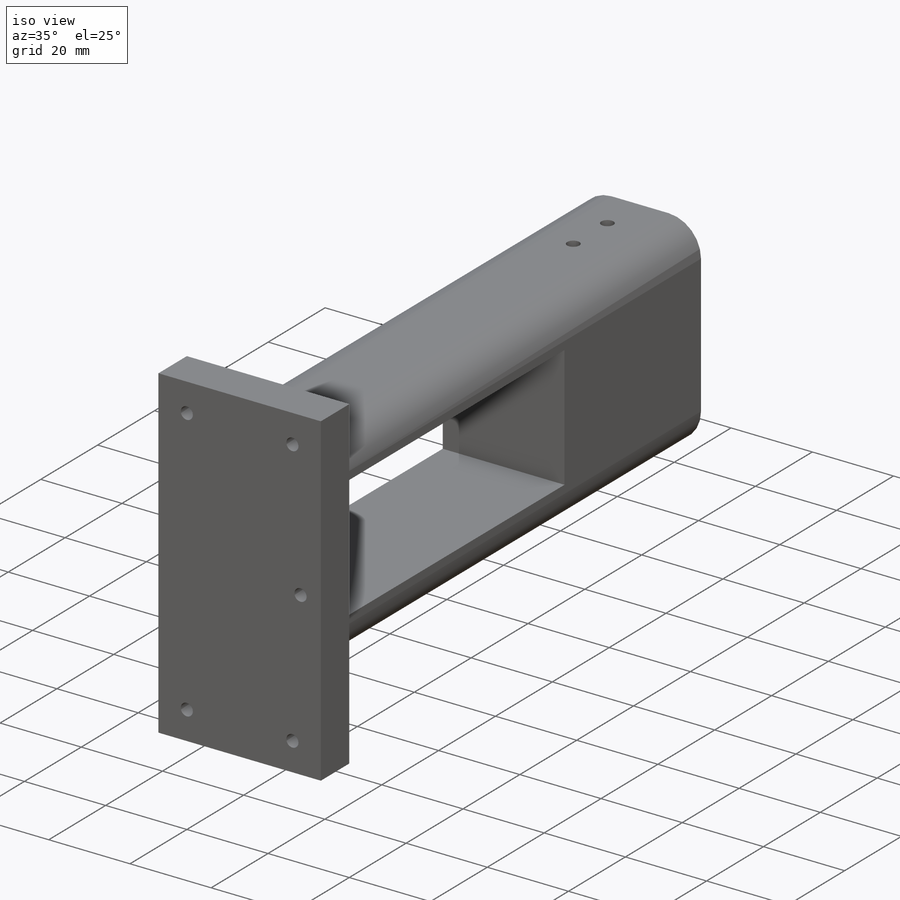
[diagram: iso view]
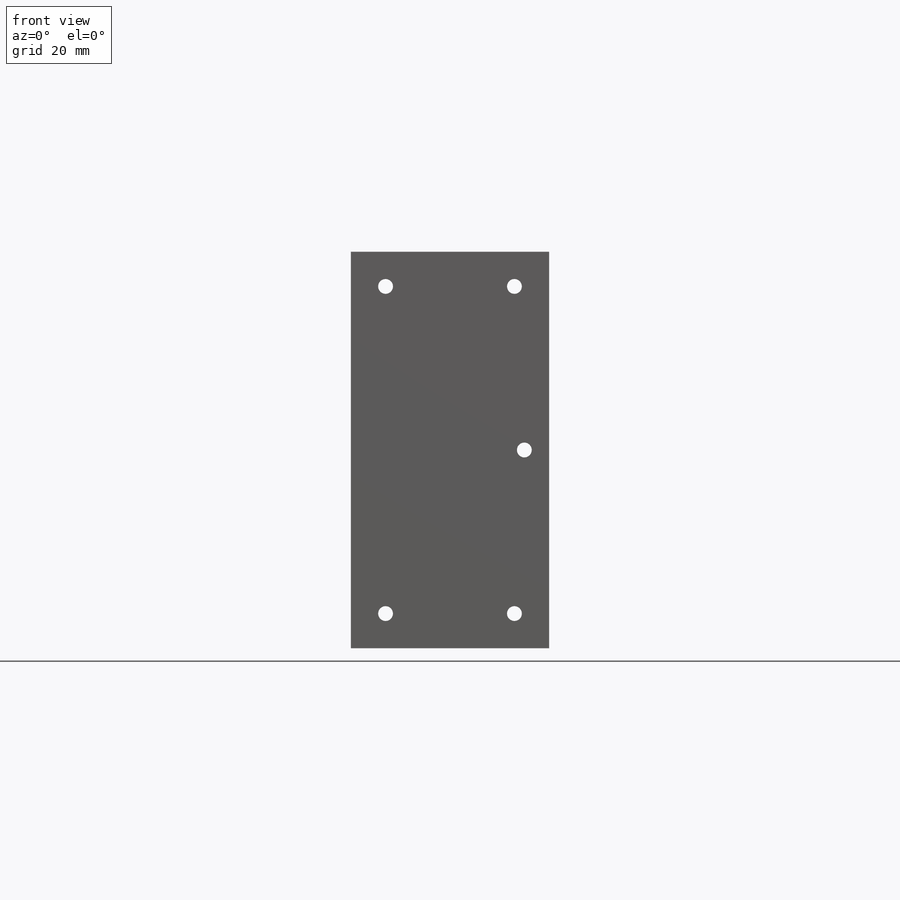
[diagram: front view]
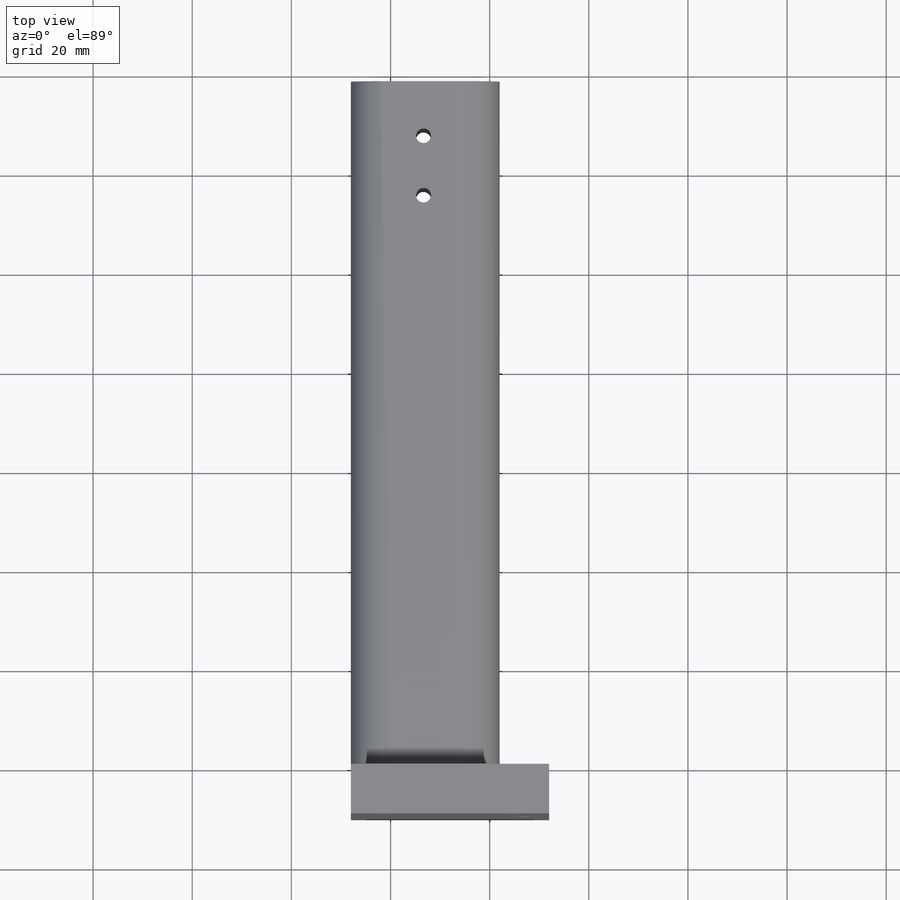
[diagram: top view]
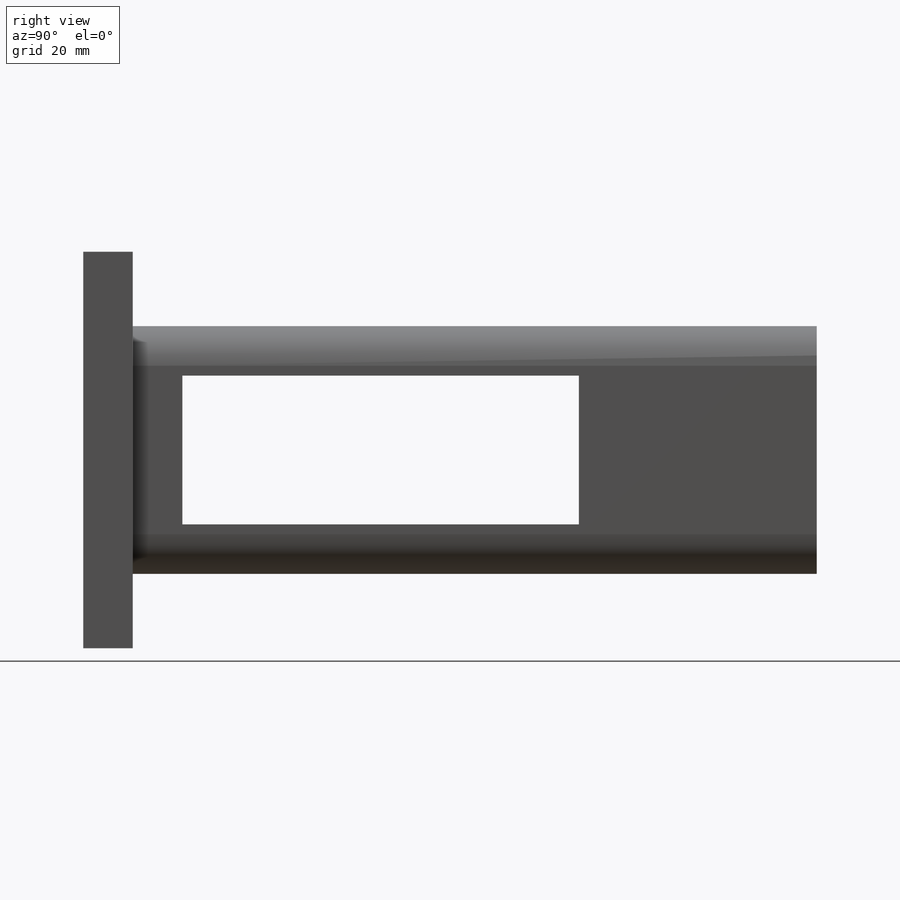
[diagram: right view]
SOLIDWORKS PART (.sldprt)
format: sldprt  version: not decoded by parser v0  size: 303,104 bytes
history: native  units: mm
features: sketch x6, fillet x4, extrude x3, cut_extrude x3, material x1 (+13 scaffold rows collapsed)
feature tree (30):
  scaffold x13  (default folders/planes/origin — collapsed)
  material  "Material <not specified>"
  sketch  "Sketch1"  dims[D1=80.0mm D2=40.0mm]
  extrude  "Boss-Extrude1"  Depth=10mm
  sketch  "Sketch2"  dims[D1=0.0mm D2=50.0mm D3=15.0mm D4=30.0mm]
  extrude  "Boss-Extrude2"  Depth=100mm
  sketch  "Sketch4"  dims[D1=10.0mm D2=10.0mm D3=10.0mm D4=10.0mm]
  cut_extrude  "Cut-Extrude1"  Depth=150mm
  sketch  "Sketch3"  dims[c1.D1=0.0mm c1.D2=5.0mm c1.D3=5.0mm c1.D4=5.0mm c1.D5=30.5mm c1.D6=15.3mm c2.D1=10.0mm c2.D2=7.0mm c2.D3=0.0mm c2.D4=0.0mm c2.D7=0.0mm c2.D8=0.0mm]
  extrude  "Boss-Extrude3"  Depth=38mm
  fillet  "Fillet1"  Radius=8mm
  fillet  "Fillet2"  Radius=8mm
  fillet  "Fillet3"  Radius=8mm
  fillet  "Fillet4"  Radius=8mm
  sketch  "Sketch5"  dims[c1.D1=3.0mm c1.D2=3.0mm c1.D3=3.0mm c1.D4=3.0mm c1.D5=3.0mm c1.D6=3.0mm c2.D3=15.0mm c2.D4=7.65mm c2.D5=27.0mm c2.D6=7.65mm]
  cut_extrude  "Cut-Extrude2"  Depth=40mm
  sketch  "Sketch6"  dims[c1.D1=3.0mm c1.D2=3.0mm c1.D3=3.0mm c1.D4=3.0mm c1.D5=3.0mm c1.D6=3.0mm c2.D2=3.0mm c2.D7=3.0mm c2.D8=3.0mm c2.D9=3.0mm c2.D10=3.0mm c2.D11=3.0mm c2.D12=3.0mm c2.D13=3.0mm c2.D14=3.0mm c2.D15=3.0mm c3.D2=7.0mm c3.D7=7.0mm c3.D8=7.0mm c3.D9=7.0mm c3.D10=7.0mm c3.D11=7.0mm c3.D12=7.0mm c3.D13=7.0mm c3.D14=5.0mm c3.D15=40.0mm]
  cut_extrude  "Cut-Extrude3"  Depth=40mm
decode coverage: 16 of 16 modeling features carry decoded parameters
note: suppression state not decoded; provenance and decode notes live in map.json
